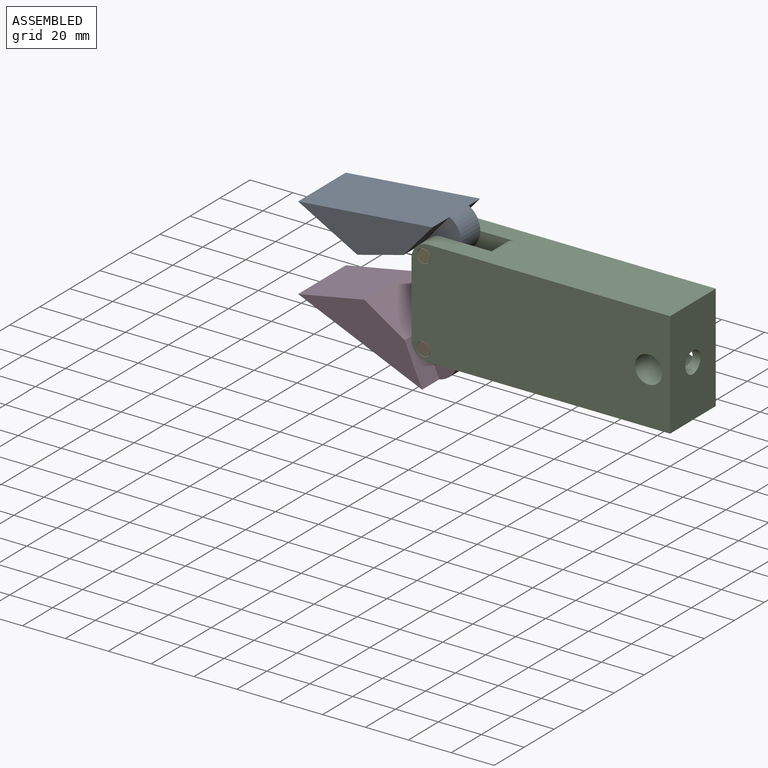
[diagram: assembled view]
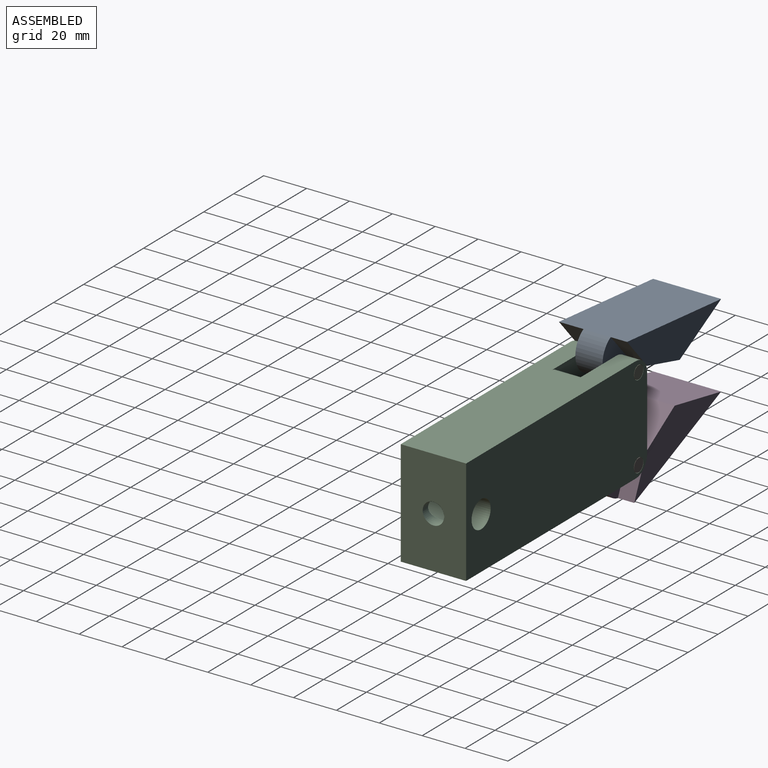
[diagram: assembled view, second angle]
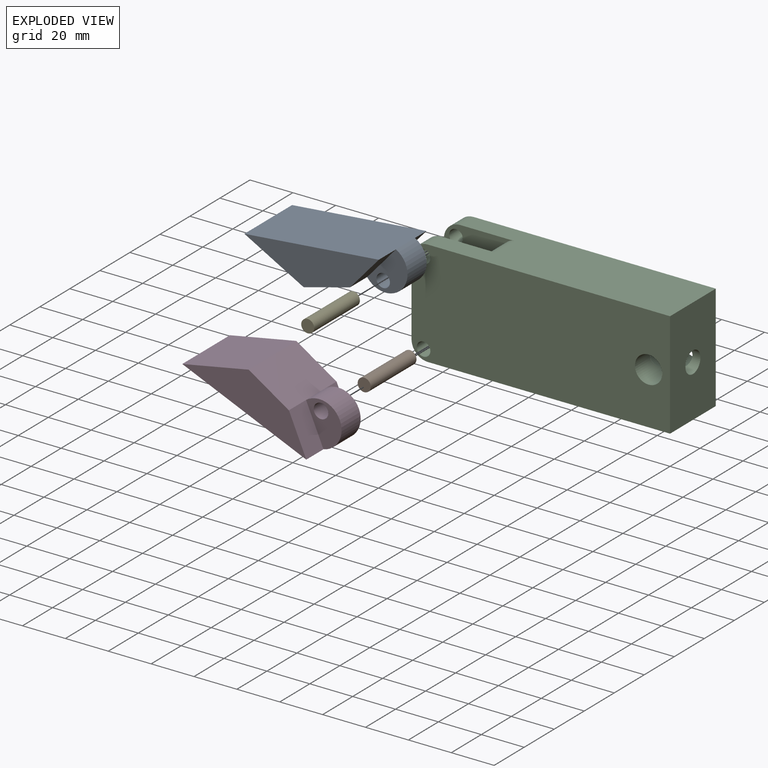
[diagram: exploded view]
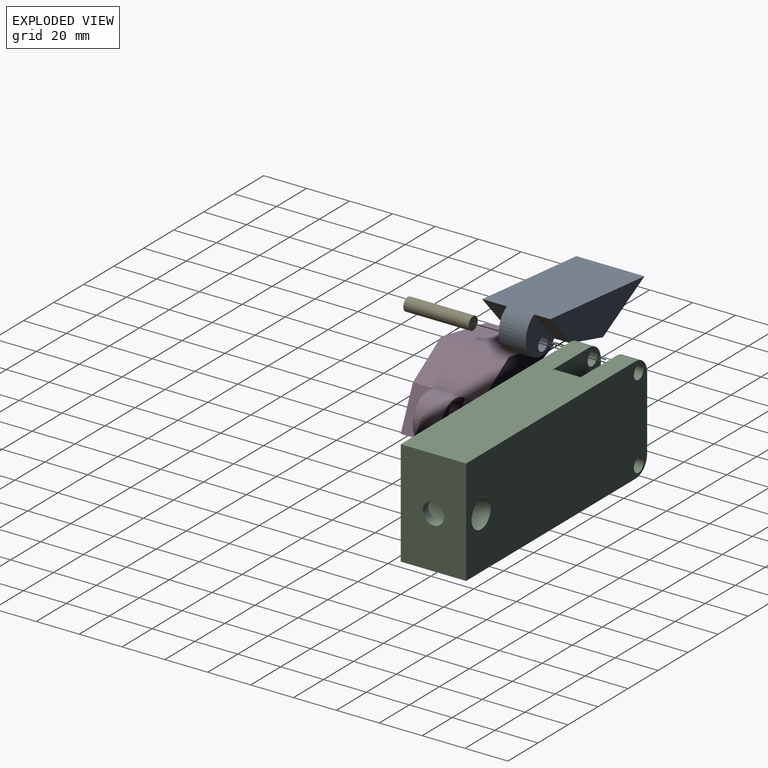
[diagram: exploded view, second angle]
ASSEMBLY  parts=5 mates=4
PART A: 11 faces, bbox 62.6x31.8x35.2 mm
  f0: plane 52.2x35.2mm, normal (0,1,0), area 680.8mm2, adj f1,f2,f4,f9
  f1: plane 31.75x31.5mm, normal (0,0,-1), area 1000.2mm2, adj f0,f2,f4,f5
  f2: plane 31.75x16.22mm, normal (0.69,0,-0.73), area 709.7mm2, adj f0,f1,f3,f5,f6,f9
  f3: plane 19.82x11.43mm, normal (0.98,0,-0.22), area 232.3mm2, adj f2,f4,f5,f8
  f4: plane 52.2x35.2mm, normal (-0.56,0,0.83), area 1998.9mm2, adj f0,f1,f3,f5,f6,f9
  f5: plane 52.2x35.2mm, normal (0,-1,0), area 680.8mm2, adj f1,f2,f3,f4
  f6: cylinder r=10.41mm len=20.83mm, axis (0,1,0), area 474mm2, adj f2,f4,f8,f10
  f7: cylinder r=3.15mm len=12.7mm, axis (0,1,0), area 251.3mm2, adj f8,f10
  f8: plane 20.83x14.88mm, normal (0,-1,0), area 186.4mm2, adj f3,f6,f7
  f9: plane 19.82x7.62mm, normal (0.98,0,-0.22), area 154.8mm2, adj f0,f2,f4,f10
  f10: plane 20.83x14.88mm, normal (0,1,0), area 186.4mm2, adj f6,f7,f9
PART B: 3 faces, bbox 6.1x30.5x6.1 mm
  f0: cylinder r=3.05mm len=30.48mm, axis (0,1,0), area 583.7mm2, adj f1,f2
  f1: plane 6.1x6.1mm, normal (0,-1,0), area 29.2mm2, adj f0
  f2: plane 6.1x6.1mm, normal (0,1,0), area 29.2mm2, adj f0
PART C: 27 faces, bbox 120.6x30.5x49.5 mm
  f0: plane 112.97x30.48mm, normal (0,0,1), area 3122.8mm2, adj f8,f9,f10,f17,f18,f20,f21,f25
  f1: cylinder r=3.19mm len=8.89mm, axis (0,1,0), area 178.1mm2, adj f10,f17
  f2: plane 112.97x30.48mm, normal (0,0,-1), area 3122.8mm2, adj f8,f9,f10,f12,f13,f19,f22,f26
  f3: cylinder r=3.19mm len=8.89mm, axis (0,1,0), area 178.1mm2, adj f9,f13
  f4: plane 34.26x30.48mm, normal (-1,0,0), area 707.6mm2, adj f9,f10,f11,f12,f13,f14,f16,f17
  f5: cylinder r=3.19mm len=8.89mm, axis (0,1,0), area 178.1mm2, adj f9,f18
  f6: cylinder r=6.35mm len=30.48mm, axis (0,1,0), area 1042.1mm2, adj f9,f10,f15,f16
  f7: cylinder r=3.19mm len=8.89mm, axis (0,1,0), area 178.1mm2, adj f10,f12
  f8: plane 49.5x30.48mm, normal (1,0,0), area 1430.2mm2, adj f0,f2,f9,f10,f15
  f9: plane 120.59x49.5mm, normal (0,-1,0), area 5754.1mm2, adj f0,f2,f3,f4,f5,f6,f8,f21
  f10: plane 120.59x49.5mm, normal (0,1,0), area 5754.1mm2, adj f0,f1,f2,f4,f6,f7,f8,f19
  f11: plane 27.78x12.7mm, normal (0,0,1), area 352.8mm2, adj f4,f17,f18,f24
  f12: plane 32.86x17.78mm, normal (0,-1,0), area 455.1mm2, adj f2,f4,f7,f14,f19,f23,f26
  f13: plane 32.86x17.78mm, normal (0,1,0), area 455.1mm2, adj f2,f3,f4,f14,f22,f23,f26
  f14: plane 27.78x12.7mm, normal (0,0,-1), area 352.8mm2, adj f4,f12,f13,f23
  f15: cylinder r=5mm len=10.01mm, axis (1,0,0), area 151.6mm2, adj f6,f8
  f16: cylinder r=5mm len=106.66mm, axis (1,0,0), area 3313.2mm2, adj f4,f6
  f17: plane 32.86x17.78mm, normal (0,-1,0), area 455.1mm2, adj f0,f1,f4,f11,f20,f24,f25
  f18: plane 32.86x17.78mm, normal (0,1,0), area 455.1mm2, adj f0,f4,f5,f11,f21,f24,f25
  f19: cylinder r=7.62mm len=8.89mm, axis (0,1,0), area 106.4mm2, adj f2,f4,f10,f12
  f20: cylinder r=7.62mm len=8.89mm, axis (0,-1,0), area 106.4mm2, adj f0,f4,f10,f17
  f21: cylinder r=7.62mm len=8.89mm, axis (0,-1,0), area 106.4mm2, adj f0,f4,f9,f18
  f22: cylinder r=7.62mm len=8.89mm, axis (0,1,0), area 106.4mm2, adj f2,f4,f9,f13
  f23: plane 12.7x12.7mm, normal (-1,0,0), area 161.3mm2, adj f12,f13,f14,f26
  f24: plane 12.7x12.7mm, normal (-1,0,0), area 161.3mm2, adj f11,f17,f18,f25
  f25: cylinder r=5.08mm len=12.7mm, axis (0,1,0), area 101.3mm2, adj f0,f17,f18,f24
  f26: cylinder r=5.08mm len=12.7mm, axis (0,-1,0), area 101.3mm2, adj f2,f12,f13,f23
PART D: 11 faces, bbox 62.6x31.8x35.2 mm
  f0: cylinder r=10.41mm len=20.83mm, axis (0,1,0), area 474mm2, adj f4,f5,f8,f10
  f1: cylinder r=3.41mm len=12.7mm, axis (0,1,0), area 272.4mm2, adj f8,f10
  f2: plane 52.21x35.2mm, normal (0,1,0), area 680.4mm2, adj f3,f4,f5,f7
  f3: plane 31.75x31.5mm, normal (0,0,1), area 1000mm2, adj f2,f4,f5,f6
  f4: plane 52.21x35.2mm, normal (-0.56,0,-0.83), area 1999.2mm2, adj f0,f2,f3,f6,f7,f9
  f5: plane 31.75x16.21mm, normal (0.69,0,0.73), area 709.7mm2, adj f0,f2,f3,f6,f7,f9
  f6: plane 52.21x35.2mm, normal (0,-1,0), area 680.4mm2, adj f3,f4,f5,f9
  f7: plane 19.82x7.62mm, normal (0.98,0,0.22), area 154.8mm2, adj f2,f4,f5,f8
  f8: plane 20.83x14.89mm, normal (0,1,0), area 181mm2, adj f0,f1,f7
  f9: plane 19.82x11.43mm, normal (0.98,0,0.22), area 232.3mm2, adj f4,f5,f6,f10
  f10: plane 20.83x14.89mm, normal (0,-1,0), area 181mm2, adj f0,f1,f9
PART E: 3 faces, bbox 6.1x30.5x6.1 mm
  f0: cylinder r=3.03mm len=30.48mm, axis (0,1,0), area 580mm2, adj f1,f2
  f1: plane 6.06x6.06mm, normal (0,-1,0), area 28.8mm2, adj f0
  f2: plane 6.06x6.06mm, normal (0,1,0), area 28.8mm2, adj f0
PLACE A rot(axis=(0,1,0),28.7deg) t=(-99.52,29.21,-36.05)mm
PLACE B t=(16.49,30.48,-65.37)mm
PLACE C t=(-114.98,30.48,-25.18)mm
PLACE D rot(axis=(0,-1,0),10.7deg) t=(-91.15,29.21,-18.62)mm
PLACE E t=(22.48,30.48,-13.19)mm
MATE revolute D.f1 <-> C.f3  axis (0,1,0) through (-114.98,21.59,-44.61)mm
MATE revolute C.f1 <-> A.f7  axis (0,-1,0) through (-114.98,21.59,-5.44)mm
MATE fastened E.f0 <-> C.f1  axis (0,1,0) through (-114.98,30.48,-5.44)mm
MATE fastened B.f0 <-> C.f3  axis (0,1,0) through (-114.98,30.48,-44.61)mm
